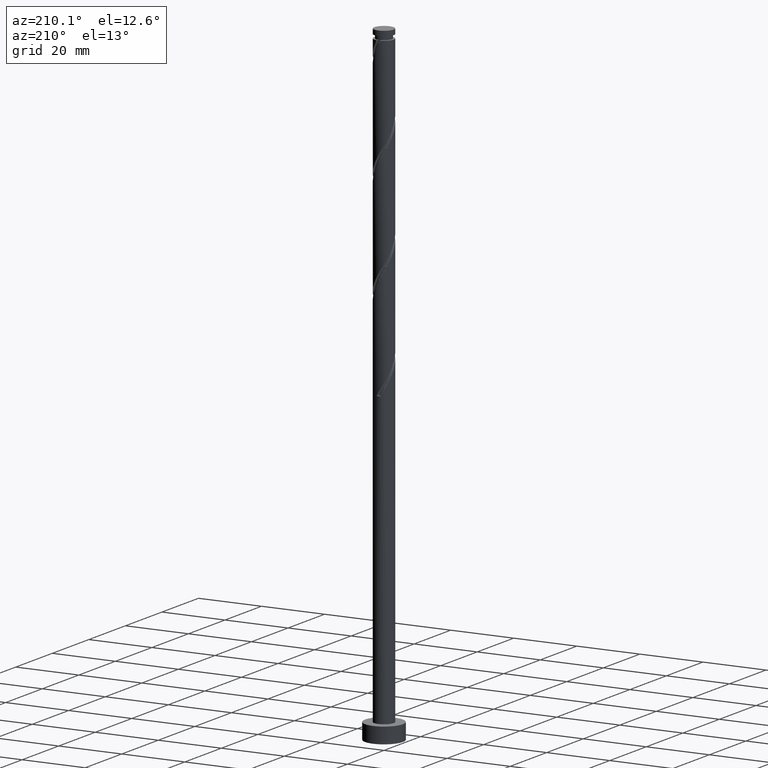
[diagram: clean part render]
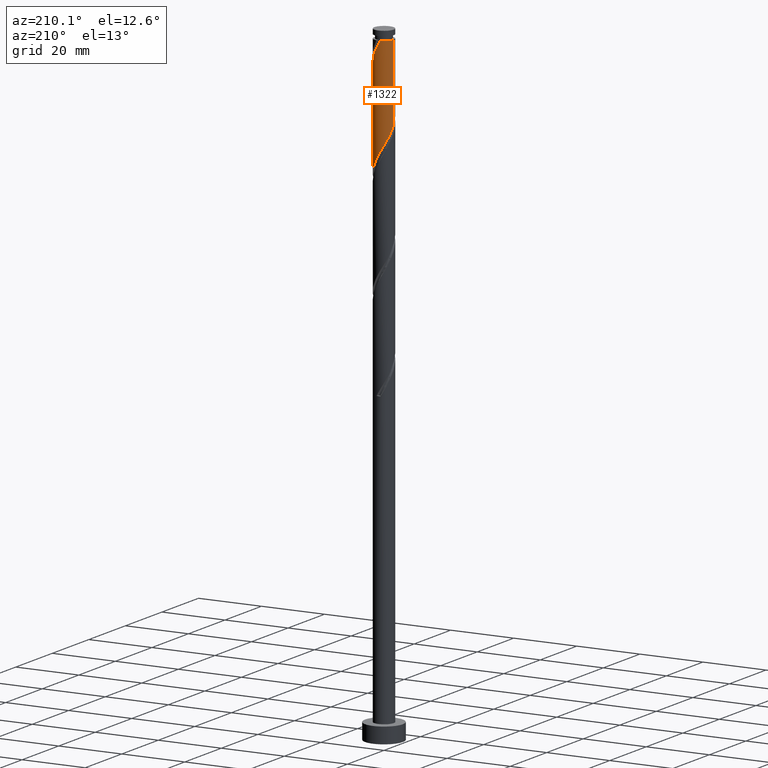
[diagram: same view with one face highlighted and labeled with its STEP entity id]
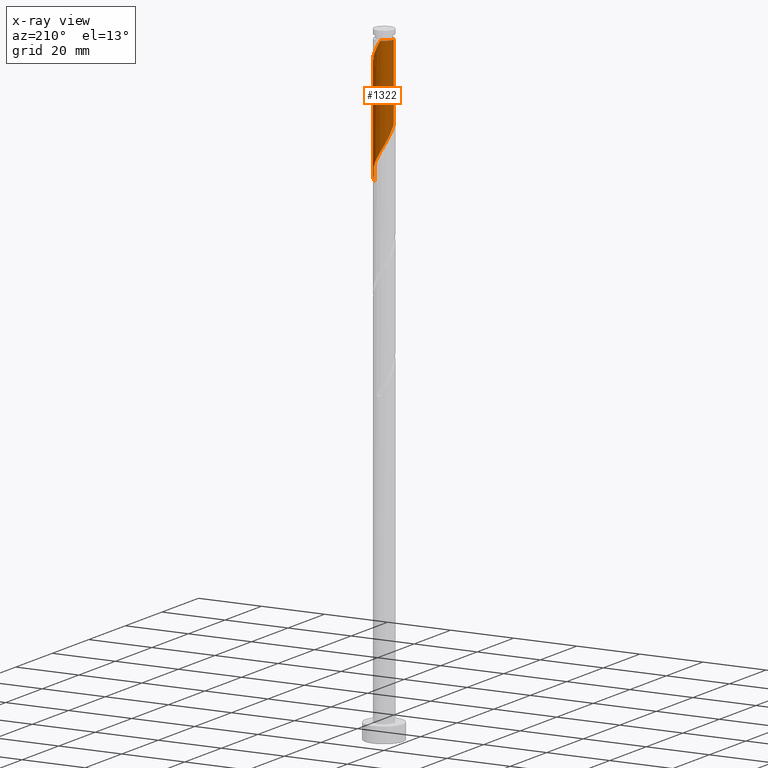
[diagram: x-ray of the same camera — body ghosted, the highlighted face saturated]
A machine part, auxiliary view. The second image highlights one B-rep face of the part: STEP entity #1322.
The next image is the same camera in x-ray: the body ghosted, the highlighted face saturated — about 0% of this face is hidden behind the body in this view.
In plain terms, the highlighted cylindrical surface (edge-blend (fillet) strip) has radius 3.1 mm, axis along (-0, -0, -1).
Its self-contained STEP definition (entity closure, byte-faithful):
#10 = VERTEX_POINT ( 'NONE', #577 ) ;
#72 = CARTESIAN_POINT ( 'NONE',  ( -2.592853814885977215, 1.747476256661027572, 170.1156171761696498 ) ) ;
#81 = CARTESIAN_POINT ( 'NONE',  ( -2.774819207282405831, 1.382164377668820832, 170.8100616206141353 ) ) ;
#99 = CARTESIAN_POINT ( 'NONE',  ( 1.382164377668822608, 2.774819207282405387, 162.4767282872807641 ) ) ;
#122 = CARTESIAN_POINT ( 'NONE',  ( 0.000000000000000000, 0.000000000000000000, 200.0000000000000000 ) ) ;
#226 = CARTESIAN_POINT ( 'NONE',  ( -2.956784599678835779, 1.016852498676613870, 171.5045060650585924 ) ) ;
#234 = CARTESIAN_POINT ( 'NONE',  ( 1.016852498676616534, 2.956784599678834002, 163.1711727317251643 ) ) ;
#292 = DIRECTION ( 'NONE',  ( -0.000000000000000000, -0.000000000000000000, -1.000000000000000000 ) ) ;
#294 = EDGE_CURVE ( 'NONE', #1481, #367, #1568, .T. ) ;
#339 = CARTESIAN_POINT ( 'NONE',  ( 2.584399066908310783, 1.711981735581151520, 159.6989505095030211 ) ) ;
#346 = CIRCLE ( 'NONE', #1525, 3.099999999999988098 ) ;
#351 = CARTESIAN_POINT ( 'NONE',  ( -0.9847556738719625002, 2.939431282200177353, 166.6433949539474497 ) ) ;
#356 = CARTESIAN_POINT ( 'NONE',  ( -0.6168922110061256792, 3.037999999999998924, 197.1989505095030779 ) ) ;
#359 = CARTESIAN_POINT ( 'NONE',  ( -3.037999999999999812, 0.6168922110061053621, 172.1989505095030495 ) ) ;
#367 = VERTEX_POINT ( 'NONE', #794 ) ;
#376 = CARTESIAN_POINT ( 'NONE',  ( 1.371739143660140714, 2.809785738221576512, 193.7267282872807357 ) ) ;
#417 = ORIENTED_EDGE ( 'NONE', *, *, #798, .T. ) ;
#437 = CARTESIAN_POINT ( 'NONE',  ( 3.038000000000003364, 0.6168922110061046959, 188.8656171761696783 ) ) ;
#496 = CARTESIAN_POINT ( 'NONE',  ( -1.371739143660136939, 2.809785738221574292, 167.3378393983919068 ) ) ;
#500 = DIRECTION ( 'NONE',  ( -0.000000000000000000, -0.000000000000000000, -1.000000000000000000 ) ) ;
#503 = CARTESIAN_POINT ( 'NONE',  ( -0.2169319233356019616, 3.119215400321168730, 196.5045060650585924 ) ) ;
#517 = CARTESIAN_POINT ( 'NONE',  ( 3.100000000000000533, 4.501089117529644308E-15, 156.5958504980464738 ) ) ;
#521 = CARTESIAN_POINT ( 'NONE',  ( -3.100000000000000089, 0.000000000000000000, 200.0000000000000000 ) ) ;
#526 = CARTESIAN_POINT ( 'NONE',  ( 1.711981735581154407, 2.584399066908313003, 193.0322838428363355 ) ) ;
#577 = CARTESIAN_POINT ( 'NONE',  ( -0.6168922110061256792, 3.037999999999998924, 197.1989505095030779 ) ) ;
#578 = DIRECTION ( 'NONE',  ( -1.000000000000000000, 0.000000000000000000, 0.000000000000000000 ) ) ;
#633 = CARTESIAN_POINT ( 'NONE',  ( 2.939431282200178686, 0.9847556738719602798, 158.3100616206141353 ) ) ;
#637 = EDGE_CURVE ( 'NONE', #1717, #1481, #659, .T. ) ;
#646 = CARTESIAN_POINT ( 'NONE',  ( 3.100000000000000977, 0.09530005013878453668, 156.7590141860746371 ) ) ;
#655 = CARTESIAN_POINT ( 'NONE',  ( -0.5977722040837880613, 3.069076826178780415, 165.9489505095030211 ) ) ;
#659 = LINE ( 'NONE', #521, #1493 ) ;
#666 = DIRECTION ( 'NONE',  ( -0.000000000000000000, -0.000000000000000000, -1.000000000000000000 ) ) ;
#744 = VERTEX_POINT ( 'NONE', #1703 ) ;
#748 = CARTESIAN_POINT ( 'NONE',  ( -1.711981735581151964, 2.584399066908310783, 168.0322838428363355 ) ) ;
#758 = CARTESIAN_POINT ( 'NONE',  ( 1.747476256661028682, 2.592853814885977215, 161.7822838428363639 ) ) ;
#760 =( BOUNDED_CURVE ( )  B_SPLINE_CURVE ( 2, ( #1361, #1633, #437, #1461, #1166, #1724, #929, #1018, #526, #376, #1028, #1550, #1560, #503, #356 ),
 .UNSPECIFIED., .F., .T. ) 
 B_SPLINE_CURVE_WITH_KNOTS ( ( 3, 2, 2, 2, 2, 2, 2, 3 ),
 ( 0.6795317669814454620, 0.6875000000000000000, 0.6979166666666668517, 0.7083333333333333703, 0.7187500000000001110, 0.7291666666666668517, 0.7395833333333334814, 0.7500000000000002220 ),
 .UNSPECIFIED. ) 
 CURVE ( )  GEOMETRIC_REPRESENTATION_ITEM ( )  RATIONAL_B_SPLINE_CURVE ( ( 0.9062941362546508284, 0.9031415850403536894, 0.9090909090909298218, 0.9013135103398480785, 0.9090909090909298218, 0.9013135103398480785, 0.9090909090909298218, 0.9013135103398480785, 0.9090909090909298218, 0.9013135103398480785, 0.9090909090909298218, 0.9013135103398480785, 0.9090909090909298218, 0.9013135103398478565, 0.9090909090909300438 ) ) 
 REPRESENTATION_ITEM ( '' )  );
#767 = CARTESIAN_POINT ( 'NONE',  ( -3.100000000000000533, -1.899130624339749892E-15, 173.2625171647130742 ) ) ;
#774 = CARTESIAN_POINT ( 'NONE',  ( 3.069076826178781303, 0.5977722040837861739, 157.6156171761696498 ) ) ;
#794 = CARTESIAN_POINT ( 'NONE',  ( 3.100000000000000533, 4.501089117529644308E-15, 156.5958504980464454 ) ) ;
#796 = EDGE_LOOP ( 'NONE', ( #873, #417, #1619, #1238, #1632 ) ) ;
#798 = EDGE_CURVE ( 'NONE', #744, #367, #1052, .T. ) ;
#873 = ORIENTED_EDGE ( 'NONE', *, *, #1376, .F. ) ;
#892 = CARTESIAN_POINT ( 'NONE',  ( 2.359012395595048606, 2.052224327502166101, 160.3933949539474213 ) ) ;
#899 = CARTESIAN_POINT ( 'NONE',  ( -3.100000000000001421, 0.3115617227303533743, 172.7290907955238026 ) ) ;
#922 = FACE_OUTER_BOUND ( 'NONE', #796, .T. ) ;
#929 = CARTESIAN_POINT ( 'NONE',  ( 2.322539071194076765, 2.053244326128037311, 191.6433949539474497 ) ) ;
#1011 = CARTESIAN_POINT ( 'NONE',  ( 0.2169319233355964660, 3.119215400321164733, 164.5600616206141638 ) ) ;
#1018 = CARTESIAN_POINT ( 'NONE',  ( 2.052224327502171430, 2.359012395595048162, 192.3378393983919068 ) ) ;
#1028 = CARTESIAN_POINT ( 'NONE',  ( 0.9847556738719657199, 2.939431282200179574, 194.4211727317251928 ) ) ;
#1049 = CARTESIAN_POINT ( 'NONE',  ( -3.100000000000000533, -1.899130624339749892E-15, 173.2625171647130742 ) ) ;
#1052 = LINE ( 'NONE', #1446, #1247 ) ;
#1144 = CARTESIAN_POINT ( 'NONE',  ( -0.1904201403740956866, 3.094146113249972796, 165.2545060650585640 ) ) ;
#1162 = DIRECTION ( 'NONE',  ( -0.000000000000000000, -0.000000000000000000, -1.000000000000000000 ) ) ;
#1166 = CARTESIAN_POINT ( 'NONE',  ( 2.774819207282409383, 1.382164377668820165, 190.2545060650585356 ) ) ;
#1181 = CARTESIAN_POINT ( 'NONE',  ( -2.322539071194071880, 2.053244326128036867, 169.4211727317251928 ) ) ;
#1196 = DIRECTION ( 'NONE',  ( -1.000000000000000000, 0.000000000000000000, 0.000000000000000000 ) ) ;
#1238 = ORIENTED_EDGE ( 'NONE', *, *, #637, .F. ) ;
#1247 = VECTOR ( 'NONE', #500, 1000.000000000000000 ) ;
#1286 = CARTESIAN_POINT ( 'NONE',  ( 2.809785738221575624, 1.371739143660134941, 159.0045060650585924 ) ) ;
#1295 = CARTESIAN_POINT ( 'NONE',  ( 3.094146113249972796, 0.1904201403740943266, 156.9211727317252496 ) ) ;
#1317 = CYLINDRICAL_SURFACE ( 'NONE', #1695, 3.100000000000000089 ) ;
#1322 = ADVANCED_FACE ( 'NONE', ( #922 ), #1317, .T. ) ;
#1361 = CARTESIAN_POINT ( 'NONE',  ( 3.100000000000003197, -1.031811126609779433E-15, 187.8020505209595683 ) ) ;
#1364 = EDGE_CURVE ( 'NONE', #1717, #10, #346, .T. ) ;
#1376 = EDGE_CURVE ( 'NONE', #744, #10, #760, .T. ) ;
#1432 = CARTESIAN_POINT ( 'NONE',  ( 0.6168922110061058062, 3.037999999999999812, 163.8656171761697635 ) ) ;
#1443 = CARTESIAN_POINT ( 'NONE',  ( -2.052224327502166545, 2.359012395595047717, 168.7267282872807925 ) ) ;
#1446 = CARTESIAN_POINT ( 'NONE',  ( 3.100000000000000089, 3.796405077356794918E-16, 200.0000000000000000 ) ) ;
#1461 = CARTESIAN_POINT ( 'NONE',  ( 2.956784599678840664, 1.016852498676613648, 189.5600616206141069 ) ) ;
#1467 = CARTESIAN_POINT ( 'NONE',  ( -3.099999999999988098, 0.000000000000000000, 197.1989505095030211 ) ) ;
#1481 = VERTEX_POINT ( 'NONE', #767 ) ;
#1493 = VECTOR ( 'NONE', #1162, 1000.000000000000000 ) ;
#1525 = AXIS2_PLACEMENT_3D ( 'NONE', #1624, #292, #578 ) ;
#1543 = CARTESIAN_POINT ( 'NONE',  ( 2.053244326128037756, 2.322539071194070548, 161.0878393983919068 ) ) ;
#1550 = CARTESIAN_POINT ( 'NONE',  ( 0.5977722040837911699, 3.069076826178783524, 195.1156171761696783 ) ) ;
#1560 = CARTESIAN_POINT ( 'NONE',  ( 0.1904201403740989340, 3.094146113249975460, 195.8100616206141353 ) ) ;
#1568 =( BOUNDED_CURVE ( )  B_SPLINE_CURVE ( 2, ( #1049, #899, #359, #226, #81, #72, #1181, #1443, #748, #496, #351, #655, #1144, #1011, #1432, #234, #99, #758, #1543, #892, #339, #1286, #633, #774, #1295, #646, #517 ),
 .UNSPECIFIED., .F., .T. ) 
 B_SPLINE_CURVE_WITH_KNOTS ( ( 3, 2, 2, 2, 2, 2, 2, 2, 2, 2, 2, 2, 2, 3 ),
 ( 0.4295317669814461836, 0.4375000000000000000, 0.4479166666666666852, 0.4583333333333333148, 0.4687500000000000000, 0.4791666666666666852, 0.4895833333333333148, 0.5000000000000000000, 0.5104166666666666297, 0.5208333333333333703, 0.5312500000000000000, 0.5416666666666666297, 0.5520833333333333703, 0.5545317669814463502 ),
 .UNSPECIFIED. ) 
 CURVE ( )  GEOMETRIC_REPRESENTATION_ITEM ( )  RATIONAL_B_SPLINE_CURVE ( ( 0.9062941362546448332, 0.9031415850403490264, 0.9090909090909243817, 0.9013135103398428605, 0.9090909090909243817, 0.9013135103398428605, 0.9090909090909243817, 0.9013135103398428605, 0.9090909090909243817, 0.9013135103398428605, 0.9090909090909243817, 0.9013135103398428605, 0.9090909090909243817, 0.9013135103398428605, 0.9090909090909243817, 0.9013135103398428605, 0.9090909090909243817, 0.9013135103398428605, 0.9090909090909243817, 0.9013135103398428605, 0.9090909090909243817, 0.9013135103398428605, 0.9090909090909243817, 0.9013135103398428605, 0.9090909090909243817, 0.9072628343904181047, 0.9062941362546446111 ) ) 
 REPRESENTATION_ITEM ( '' )  );
#1619 = ORIENTED_EDGE ( 'NONE', *, *, #294, .F. ) ;
#1624 = CARTESIAN_POINT ( 'NONE',  ( 0.000000000000000000, 0.000000000000000000, 197.1989505095030211 ) ) ;
#1632 = ORIENTED_EDGE ( 'NONE', *, *, #1364, .T. ) ;
#1633 = CARTESIAN_POINT ( 'NONE',  ( 3.100000000000009415, 0.3115617227303242309, 188.3354768901488114 ) ) ;
#1695 = AXIS2_PLACEMENT_3D ( 'NONE', #122, #666, #1196 ) ;
#1703 = CARTESIAN_POINT ( 'NONE',  ( 3.100000000000003197, -1.031811126609779433E-15, 187.8020505209595967 ) ) ;
#1717 = VERTEX_POINT ( 'NONE', #1467 ) ;
#1724 = CARTESIAN_POINT ( 'NONE',  ( 2.592853814885982100, 1.747476256661027350, 190.9489505095029642 ) ) ;